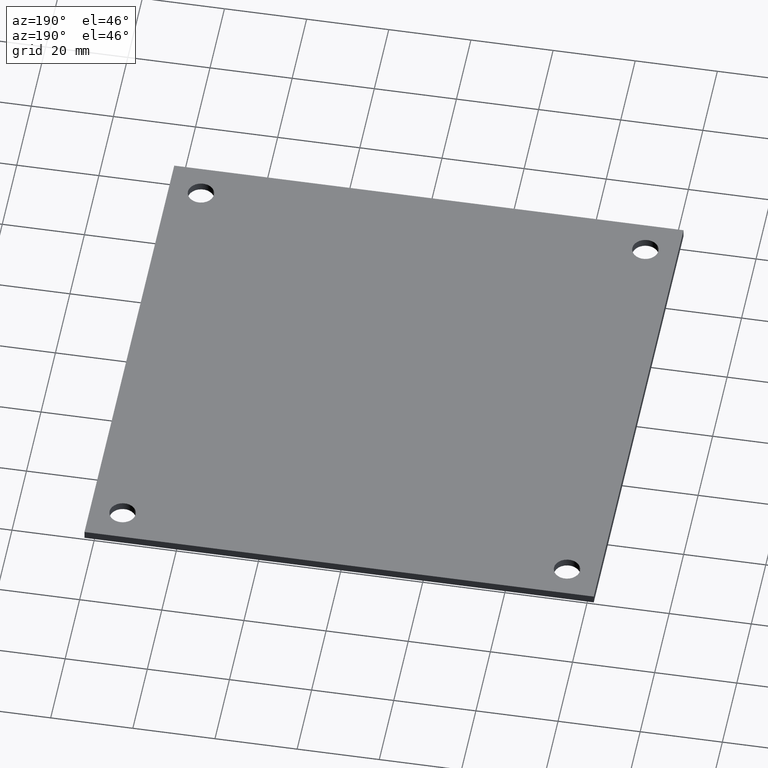
[diagram: clean part render]
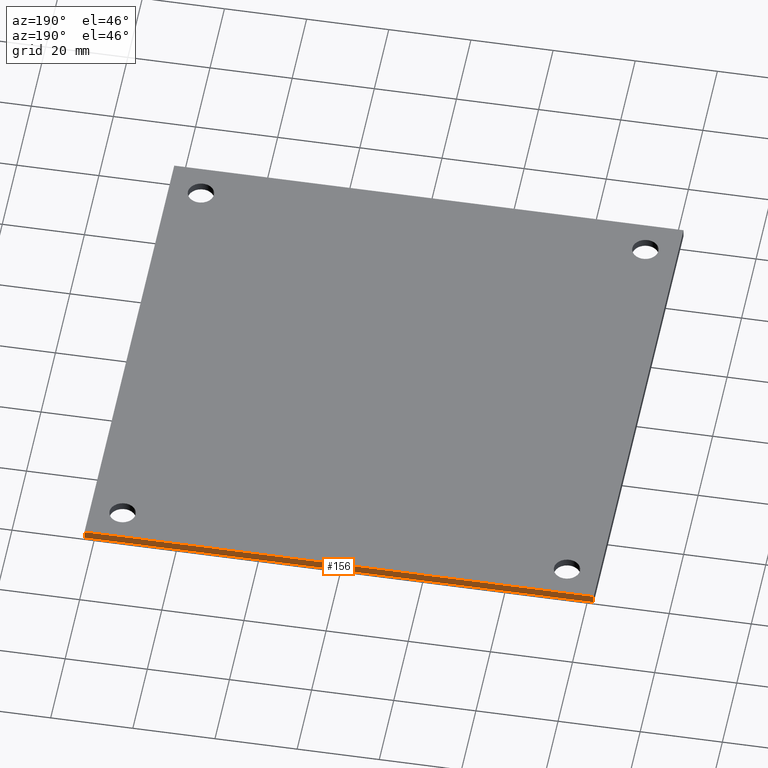
[diagram: same view with one face highlighted and labeled with its STEP entity id]
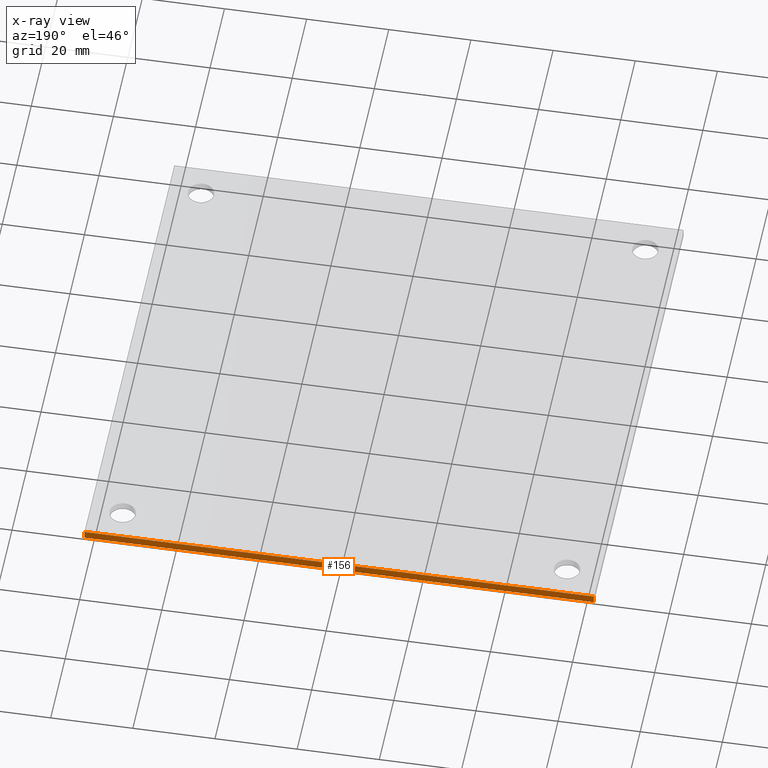
[diagram: x-ray of the same camera — body ghosted, the highlighted face saturated]
A machine part, auxiliary view. The second image highlights one B-rep face of the part: STEP entity #156.
The next image is the same camera in x-ray: the body ghosted, the highlighted face saturated — about 0% of this face is hidden behind the body in this view.
In plain terms, the highlighted planar face has unit normal (-0, -1, 0).
Its self-contained STEP definition (entity closure, byte-faithful):
#71 = VERTEX_POINT ( 'NONE', #282 ) ;
#83 = VERTEX_POINT ( 'NONE', #338 ) ;
#85 = EDGE_CURVE ( 'NONE', #71, #83, #337, .T. ) ;
#102 = VERTEX_POINT ( 'NONE', #454 ) ;
#105 = EDGE_CURVE ( 'NONE', #106, #102, #452, .T. ) ;
#106 = VERTEX_POINT ( 'NONE', #448 ) ;
#137 = ORIENTED_EDGE ( 'NONE', *, *, #172, .F. ) ;
#138 = ORIENTED_EDGE ( 'NONE', *, *, #85, .F. ) ;
#139 = ORIENTED_EDGE ( 'NONE', *, *, #153, .T. ) ;
#153 = EDGE_CURVE ( 'NONE', #71, #106, #418, .T. ) ;
#156 = ADVANCED_FACE ( 'NONE', ( #414 ), #413, .F. ) ;
#157 = EDGE_LOOP ( 'NONE', ( #158, #137, #138, #139 ) ) ;
#158 = ORIENTED_EDGE ( 'NONE', *, *, #105, .T. ) ;
#172 = EDGE_CURVE ( 'NONE', #83, #102, #402, .T. ) ;
#282 = CARTESIAN_POINT ( 'NONE',  ( 62.00000000000000000, 62.00000000000000000, 2.000000000000000000 ) ) ;
#335 = VECTOR ( 'NONE', #482, 1000.000000000000000 ) ;
#336 = CARTESIAN_POINT ( 'NONE',  ( -61.99999999999999300, 62.00000000000000700, 2.000000000000000000 ) ) ;
#337 = LINE ( 'NONE', #336, #335 ) ;
#338 = CARTESIAN_POINT ( 'NONE',  ( -61.99999999999999300, 62.00000000000000700, 2.000000000000000000 ) ) ;
#399 = DIRECTION ( 'NONE',  ( -0.0000000000000000000, -0.0000000000000000000, -1.000000000000000000 ) ) ;
#400 = VECTOR ( 'NONE', #399, 1000.000000000000000 ) ;
#401 = CARTESIAN_POINT ( 'NONE',  ( -61.99999999999999300, 62.00000000000000700, 2.000000000000000000 ) ) ;
#402 = LINE ( 'NONE', #401, #400 ) ;
#409 = DIRECTION ( 'NONE',  ( 1.000000000000000000, -5.595882180570345400E-017, 0.0000000000000000000 ) ) ;
#410 = DIRECTION ( 'NONE',  ( -5.595882180570345400E-017, -1.000000000000000000, 0.0000000000000000000 ) ) ;
#411 = CARTESIAN_POINT ( 'NONE',  ( -61.99999999999999300, 62.00000000000000700, 2.000000000000000000 ) ) ;
#412 = AXIS2_PLACEMENT_3D ( 'NONE', #411, #410, #409 ) ;
#413 = PLANE ( 'NONE',  #412 ) ;
#414 = FACE_OUTER_BOUND ( 'NONE', #157, .T. ) ;
#415 = VECTOR ( 'NONE', #416, 1000.000000000000000 ) ;
#416 = DIRECTION ( 'NONE',  ( -0.0000000000000000000, -0.0000000000000000000, -1.000000000000000000 ) ) ;
#417 = CARTESIAN_POINT ( 'NONE',  ( 62.00000000000000000, 62.00000000000000000, 2.000000000000000000 ) ) ;
#418 = LINE ( 'NONE', #417, #415 ) ;
#448 = CARTESIAN_POINT ( 'NONE',  ( 62.00000000000000000, 62.00000000000000000, 0.0000000000000000000 ) ) ;
#449 = DIRECTION ( 'NONE',  ( -1.000000000000000000, 5.595882180570345400E-017, -0.0000000000000000000 ) ) ;
#450 = VECTOR ( 'NONE', #449, 1000.000000000000000 ) ;
#451 = CARTESIAN_POINT ( 'NONE',  ( -61.99999999999999300, 62.00000000000000700, 0.0000000000000000000 ) ) ;
#452 = LINE ( 'NONE', #451, #450 ) ;
#454 = CARTESIAN_POINT ( 'NONE',  ( -61.99999999999999300, 62.00000000000000700, 0.0000000000000000000 ) ) ;
#482 = DIRECTION ( 'NONE',  ( -1.000000000000000000, 5.595882180570345400E-017, -0.0000000000000000000 ) ) ;